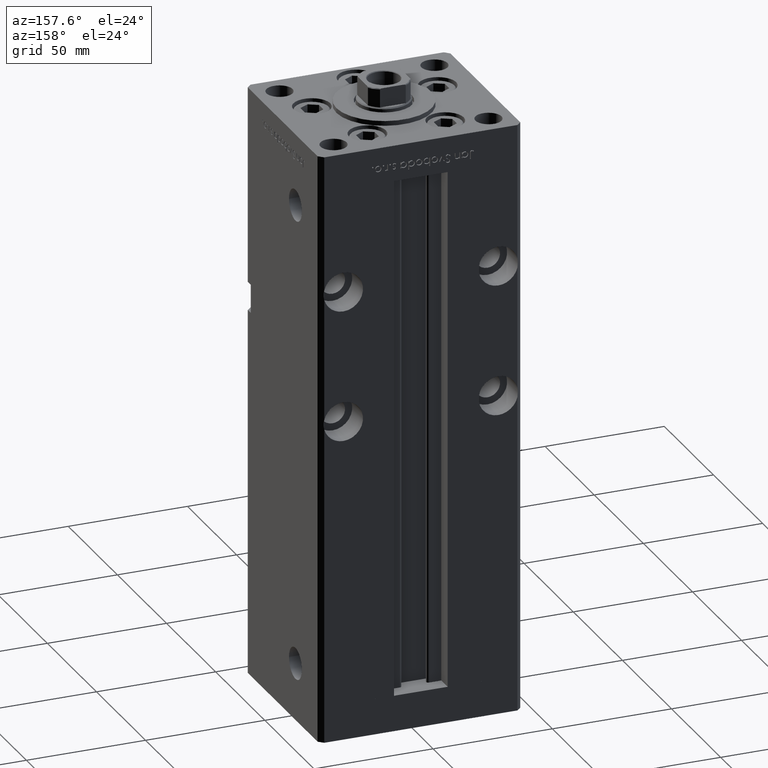
[diagram: clean part render]
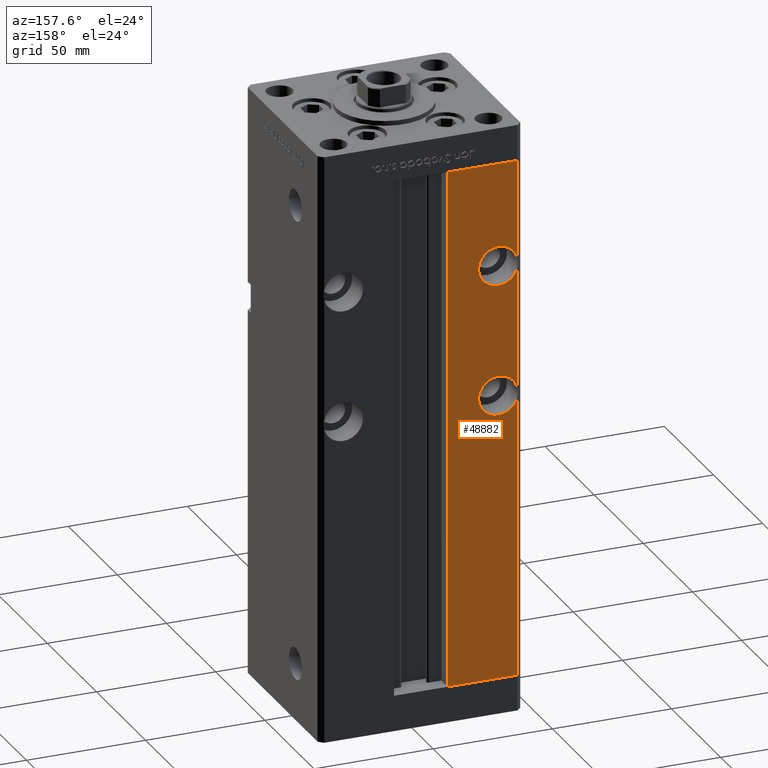
[diagram: same view with one face highlighted and labeled with its STEP entity id]
A machine part, auxiliary view. The second image highlights one B-rep face of the part: STEP entity #48882.
In plain terms, the highlighted planar face has unit normal (0, -1, 0).
Its self-contained STEP definition (entity closure, byte-faithful):
#692 = CIRCLE ( 'NONE', #13540, 8.250000000000007105 ) ;
#734 = PLANE ( 'NONE',  #18849 ) ;
#1264 = DIRECTION ( 'NONE',  ( -0.000000000000000000, -0.000000000000000000, -1.000000000000000000 ) ) ;
#1433 = ORIENTED_EDGE ( 'NONE', *, *, #9229, .F. ) ;
#2633 = VECTOR ( 'NONE', #8629, 1000.000000000000000 ) ;
#2807 = CARTESIAN_POINT ( 'NONE',  ( -32.50000000000000000, 37.50000000000000000, 183.2500000000000284 ) ) ;
#3372 = VERTEX_POINT ( 'NONE', #52194 ) ;
#3503 = VERTEX_POINT ( 'NONE', #16728 ) ;
#3927 = DIRECTION ( 'NONE',  ( 0.000000000000000000, 1.000000000000000000, -0.000000000000000000 ) ) ;
#4300 = CARTESIAN_POINT ( 'NONE',  ( -11.24999999999999822, 37.50000000000000000, 0.000000000000000000 ) ) ;
#4552 = CARTESIAN_POINT ( 'NONE',  ( -40.50000000000000711, 37.50000000000000000, 177.0155644370746302 ) ) ;
#5119 = CARTESIAN_POINT ( 'NONE',  ( -40.50000000000000711, 37.50000000000000000, 218.5000000000000000 ) ) ;
#6075 = EDGE_LOOP ( 'NONE', ( #34021, #39148, #12712, #20538, #37785, #26402, #17963, #12480, #24390, #1433, #35450, #30722 ) ) ;
#6408 = CARTESIAN_POINT ( 'NONE',  ( -40.50000000000000711, 37.50000000000000000, 117.9844355629254125 ) ) ;
#6437 = CARTESIAN_POINT ( 'NONE',  ( -32.50000000000000000, 37.50000000000000000, 120.0000000000000284 ) ) ;
#6600 = EDGE_CURVE ( 'NONE', #20993, #36005, #10482, .T. ) ;
#7168 = DIRECTION ( 'NONE',  ( 0.000000000000000000, 0.000000000000000000, -1.000000000000000000 ) ) ;
#7376 = EDGE_CURVE ( 'NONE', #15756, #3372, #30658, .T. ) ;
#8378 = AXIS2_PLACEMENT_3D ( 'NONE', #42220, #26613, #35952 ) ;
#8629 = DIRECTION ( 'NONE',  ( -0.000000000000000000, -0.000000000000000000, -1.000000000000000000 ) ) ;
#9175 = VECTOR ( 'NONE', #52386, 1000.000000000000000 ) ;
#9229 = EDGE_CURVE ( 'NONE', #3372, #33508, #31553, .T. ) ;
#9316 = DIRECTION ( 'NONE',  ( 0.000000000000000000, -0.000000000000000000, -1.000000000000000000 ) ) ;
#10470 = DIRECTION ( 'NONE',  ( 0.000000000000000000, 0.000000000000000000, 1.000000000000000000 ) ) ;
#10482 = LINE ( 'NONE', #43802, #9175 ) ;
#11284 = DIRECTION ( 'NONE',  ( 0.000000000000000000, 1.000000000000000000, 0.000000000000000000 ) ) ;
#11704 = VERTEX_POINT ( 'NONE', #52319 ) ;
#11809 = AXIS2_PLACEMENT_3D ( 'NONE', #6437, #11284, #10470 ) ;
#11996 = DIRECTION ( 'NONE',  ( -0.000000000000000000, -0.000000000000000000, -1.000000000000000000 ) ) ;
#12480 = ORIENTED_EDGE ( 'NONE', *, *, #28938, .T. ) ;
#12712 = ORIENTED_EDGE ( 'NONE', *, *, #24664, .F. ) ;
#12903 = LINE ( 'NONE', #45405, #43025 ) ;
#13070 = DIRECTION ( 'NONE',  ( 0.000000000000000000, 0.000000000000000000, 1.000000000000000000 ) ) ;
#13540 = AXIS2_PLACEMENT_3D ( 'NONE', #20052, #3927, #7168 ) ;
#14745 = AXIS2_PLACEMENT_3D ( 'NONE', #31163, #43785, #36521 ) ;
#15597 = CIRCLE ( 'NONE', #14745, 8.250000000000007105 ) ;
#15756 = VERTEX_POINT ( 'NONE', #19945 ) ;
#16357 = LINE ( 'NONE', #30536, #38270 ) ;
#16728 = CARTESIAN_POINT ( 'NONE',  ( -11.24999999999999822, 37.50000000000000000, 0.000000000000000000 ) ) ;
#16875 = CARTESIAN_POINT ( 'NONE',  ( -40.50000000000000711, 37.50000000000000000, 218.5000000000000000 ) ) ;
#17156 = DIRECTION ( 'NONE',  ( 0.000000000000000000, 1.000000000000000000, -0.000000000000000000 ) ) ;
#17221 = LINE ( 'NONE', #5119, #2633 ) ;
#17963 = ORIENTED_EDGE ( 'NONE', *, *, #28916, .F. ) ;
#18849 = AXIS2_PLACEMENT_3D ( 'NONE', #42094, #21666, #9316 ) ;
#18932 = AXIS2_PLACEMENT_3D ( 'NONE', #49864, #44855, #13070 ) ;
#19945 = CARTESIAN_POINT ( 'NONE',  ( -32.50000000000000000, 37.50000000000000000, 128.2500000000000284 ) ) ;
#20052 = CARTESIAN_POINT ( 'NONE',  ( -32.50000000000000000, 37.50000000000000000, 175.0000000000000284 ) ) ;
#20538 = ORIENTED_EDGE ( 'NONE', *, *, #38413, .F. ) ;
#20993 = VERTEX_POINT ( 'NONE', #16875 ) ;
#21666 = DIRECTION ( 'NONE',  ( 0.000000000000000000, -1.000000000000000000, 0.000000000000000000 ) ) ;
#24390 = ORIENTED_EDGE ( 'NONE', *, *, #39618, .F. ) ;
#24624 = CIRCLE ( 'NONE', #31486, 8.250000000000007105 ) ;
#24664 = EDGE_CURVE ( 'NONE', #33013, #31034, #15597, .T. ) ;
#24721 = DIRECTION ( 'NONE',  ( -0.000000000000000000, -0.000000000000000000, 1.000000000000000000 ) ) ;
#24868 = CARTESIAN_POINT ( 'NONE',  ( -40.50000000000000711, 37.50000000000000000, 218.5000000000000000 ) ) ;
#25015 = VECTOR ( 'NONE', #24721, 1000.000000000000000 ) ;
#26402 = ORIENTED_EDGE ( 'NONE', *, *, #6600, .T. ) ;
#26613 = DIRECTION ( 'NONE',  ( 0.000000000000000000, 1.000000000000000000, 0.000000000000000000 ) ) ;
#28916 = EDGE_CURVE ( 'NONE', #3503, #36005, #41632, .T. ) ;
#28938 = EDGE_CURVE ( 'NONE', #3503, #50100, #12903, .T. ) ;
#30536 = CARTESIAN_POINT ( 'NONE',  ( -40.50000000000000711, 37.50000000000000000, 218.5000000000000000 ) ) ;
#30658 = CIRCLE ( 'NONE', #11809, 8.250000000000007105 ) ;
#30722 = ORIENTED_EDGE ( 'NONE', *, *, #51850, .F. ) ;
#30951 = EDGE_CURVE ( 'NONE', #20993, #45421, #49318, .T. ) ;
#31034 = VERTEX_POINT ( 'NONE', #37489 ) ;
#31163 = CARTESIAN_POINT ( 'NONE',  ( -32.50000000000000000, 37.50000000000000000, 175.0000000000000284 ) ) ;
#31486 = AXIS2_PLACEMENT_3D ( 'NONE', #37573, #17156, #45888 ) ;
#31553 = CIRCLE ( 'NONE', #8378, 8.250000000000007105 ) ;
#33013 = VERTEX_POINT ( 'NONE', #2807 ) ;
#33508 = VERTEX_POINT ( 'NONE', #6408 ) ;
#34021 = ORIENTED_EDGE ( 'NONE', *, *, #52453, .F. ) ;
#34966 = CARTESIAN_POINT ( 'NONE',  ( -11.24999999999999822, 37.50000000000000000, 218.5000000000000000 ) ) ;
#35450 = ORIENTED_EDGE ( 'NONE', *, *, #7376, .F. ) ;
#35952 = DIRECTION ( 'NONE',  ( 0.000000000000000000, 0.000000000000000000, 1.000000000000000000 ) ) ;
#36005 = VERTEX_POINT ( 'NONE', #34966 ) ;
#36445 = VECTOR ( 'NONE', #11996, 1000.000000000000000 ) ;
#36521 = DIRECTION ( 'NONE',  ( 0.000000000000000000, 0.000000000000000000, -1.000000000000000000 ) ) ;
#37489 = CARTESIAN_POINT ( 'NONE',  ( -32.50000000000000000, 37.50000000000000000, 166.7500000000000000 ) ) ;
#37573 = CARTESIAN_POINT ( 'NONE',  ( -32.50000000000000000, 37.50000000000000000, 175.0000000000000284 ) ) ;
#37785 = ORIENTED_EDGE ( 'NONE', *, *, #30951, .F. ) ;
#38270 = VECTOR ( 'NONE', #1264, 1000.000000000000000 ) ;
#38413 = EDGE_CURVE ( 'NONE', #45421, #33013, #24624, .T. ) ;
#38532 = VERTEX_POINT ( 'NONE', #51758 ) ;
#38581 = FACE_OUTER_BOUND ( 'NONE', #6075, .T. ) ;
#39148 = ORIENTED_EDGE ( 'NONE', *, *, #43569, .F. ) ;
#39618 = EDGE_CURVE ( 'NONE', #33508, #50100, #16357, .T. ) ;
#41632 = LINE ( 'NONE', #4300, #25015 ) ;
#42094 = CARTESIAN_POINT ( 'NONE',  ( -11.24999999999999822, 37.50000000000000000, 218.5000000000000000 ) ) ;
#42220 = CARTESIAN_POINT ( 'NONE',  ( -32.50000000000000000, 37.50000000000000000, 120.0000000000000284 ) ) ;
#43025 = VECTOR ( 'NONE', #49433, 1000.000000000000000 ) ;
#43569 = EDGE_CURVE ( 'NONE', #31034, #11704, #692, .T. ) ;
#43785 = DIRECTION ( 'NONE',  ( 0.000000000000000000, 1.000000000000000000, -0.000000000000000000 ) ) ;
#43787 = CIRCLE ( 'NONE', #18932, 8.250000000000007105 ) ;
#43802 = CARTESIAN_POINT ( 'NONE',  ( -11.24999999999999822, 37.50000000000000000, 218.5000000000000000 ) ) ;
#44855 = DIRECTION ( 'NONE',  ( 0.000000000000000000, 1.000000000000000000, 0.000000000000000000 ) ) ;
#45405 = CARTESIAN_POINT ( 'NONE',  ( -11.24999999999999822, 37.50000000000000000, 0.000000000000000000 ) ) ;
#45421 = VERTEX_POINT ( 'NONE', #4552 ) ;
#45888 = DIRECTION ( 'NONE',  ( 0.000000000000000000, 0.000000000000000000, -1.000000000000000000 ) ) ;
#48882 = ADVANCED_FACE ( 'NONE', ( #38581 ), #734, .F. ) ;
#49318 = LINE ( 'NONE', #24868, #36445 ) ;
#49433 = DIRECTION ( 'NONE',  ( -1.000000000000000000, 0.000000000000000000, 0.000000000000000000 ) ) ;
#49864 = CARTESIAN_POINT ( 'NONE',  ( -32.50000000000000000, 37.50000000000000000, 120.0000000000000284 ) ) ;
#50100 = VERTEX_POINT ( 'NONE', #52813 ) ;
#51758 = CARTESIAN_POINT ( 'NONE',  ( -40.50000000000000711, 37.50000000000000000, 122.0155644370746302 ) ) ;
#51850 = EDGE_CURVE ( 'NONE', #38532, #15756, #43787, .T. ) ;
#52194 = CARTESIAN_POINT ( 'NONE',  ( -32.50000000000000000, 37.50000000000000000, 111.7500000000000142 ) ) ;
#52319 = CARTESIAN_POINT ( 'NONE',  ( -40.50000000000000711, 37.50000000000000000, 172.9844355629253982 ) ) ;
#52386 = DIRECTION ( 'NONE',  ( 1.000000000000000000, 0.000000000000000000, 0.000000000000000000 ) ) ;
#52453 = EDGE_CURVE ( 'NONE', #11704, #38532, #17221, .T. ) ;
#52813 = CARTESIAN_POINT ( 'NONE',  ( -40.50000000000000711, 37.50000000000000000, 0.000000000000000000 ) ) ;